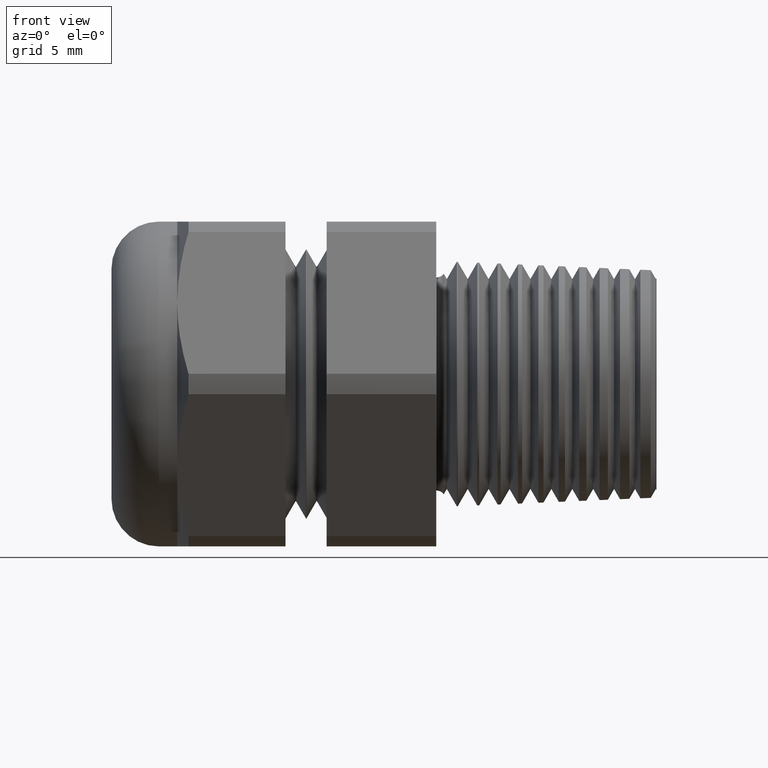
[diagram: clean part render]
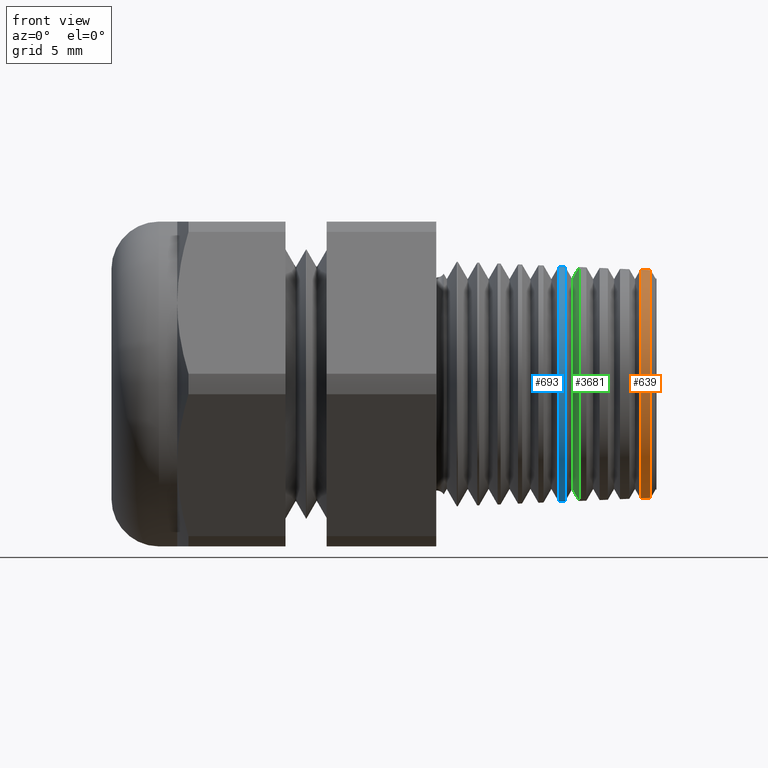
[diagram: same view with three faces highlighted in distinct colors, each labeled with its STEP entity id]
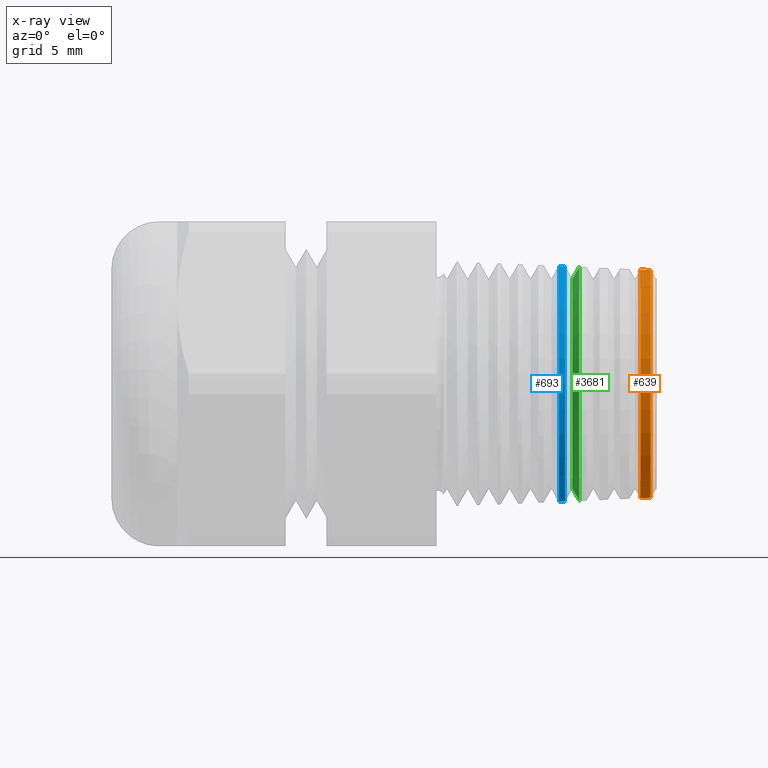
[diagram: x-ray of the same camera — body ghosted, the three highlighted faces saturated]
A machine part, front view with three faces highlighted in distinct colors.
The next image is the same camera in x-ray (body ghosted, the three faces saturated) — at least one of them is partly hidden behind the body in this view.
Their STEP definitions:

[orange] entity #639 — the highlighted conical surface has half-angle 2.5 deg.
#39 = VERTEX_POINT ( 'NONE', #1326 ) ;
#102 = VERTEX_POINT ( 'NONE', #1450 ) ;
#105 = VERTEX_POINT ( 'NONE', #1444 ) ;
#603 = EDGE_CURVE ( 'NONE', #102, #3660, #2236, .T. ) ;
#639 = ADVANCED_FACE ( 'NONE', ( #2288 ), #2349, .T. ) ;
#640 = EDGE_LOOP ( 'NONE', ( #670, #671, #673, #674 ) ) ;
#670 = ORIENTED_EDGE ( 'NONE', *, *, #695, .F. ) ;
#671 = ORIENTED_EDGE ( 'NONE', *, *, #672, .F. ) ;
#672 = EDGE_CURVE ( 'NONE', #102, #105, #2361, .T. ) ;
#673 = ORIENTED_EDGE ( 'NONE', *, *, #603, .T. ) ;
#674 = ORIENTED_EDGE ( 'NONE', *, *, #696, .F. ) ;
#695 = EDGE_CURVE ( 'NONE', #105, #39, #2445, .T. ) ;
#696 = EDGE_CURVE ( 'NONE', #39, #3660, #2441, .T. ) ;
#1326 = CARTESIAN_POINT ( 'NONE',  ( 0.5466950970836145200, 3.749020756565805800E-017, -0.3061307765778688600 ) ) ;
#1444 = CARTESIAN_POINT ( 'NONE',  ( 0.5744813283593623900, 3.741592214058186900E-017, -0.3049176035204956800 ) ) ;
#1450 = CARTESIAN_POINT ( 'NONE',  ( 0.5744813283593623900, 0.0000000000000000000, 0.3049176035204956800 ) ) ;
#2233 = DIRECTION ( 'NONE',  ( -0.9990482215818576900, 0.0000000000000000000, 0.04361938736533608300 ) ) ;
#2234 = VECTOR ( 'NONE', #2233, 39.37007874015748100 ) ;
#2235 = CARTESIAN_POINT ( 'NONE',  ( 0.5899999999999999700, 0.0000000000000000000, 0.3042400436839778900 ) ) ;
#2236 = LINE ( 'NONE', #2235, #2234 ) ;
#2288 = FACE_OUTER_BOUND ( 'NONE', #640, .T. ) ;
#2345 = DIRECTION ( 'NONE',  ( 0.0000000000000000000, 0.0000000000000000000, 1.000000000000000000 ) ) ;
#2346 = DIRECTION ( 'NONE',  ( -1.000000000000000000, 0.0000000000000000000, 0.0000000000000000000 ) ) ;
#2347 = CARTESIAN_POINT ( 'NONE',  ( 0.5899999999999999700, 0.0000000000000000000, 0.0000000000000000000 ) ) ;
#2348 = AXIS2_PLACEMENT_3D ( 'NONE', #2347, #2346, #2345 ) ;
#2349 = CONICAL_SURFACE ( 'NONE', #2348, 0.3042400436839778900, 0.04363323129985832000 ) ;
#2357 = DIRECTION ( 'NONE',  ( 0.0000000000000000000, 0.0000000000000000000, 1.000000000000000000 ) ) ;
#2358 = DIRECTION ( 'NONE',  ( 1.000000000000000000, 0.0000000000000000000, 0.0000000000000000000 ) ) ;
#2359 = CARTESIAN_POINT ( 'NONE',  ( 0.5744813283593623900, 0.0000000000000000000, 0.0000000000000000000 ) ) ;
#2360 = AXIS2_PLACEMENT_3D ( 'NONE', #2359, #2358, #2357 ) ;
#2361 = CIRCLE ( 'NONE', #2360, 0.3049176035204956800 ) ;
#2437 = DIRECTION ( 'NONE',  ( 0.0000000000000000000, 0.0000000000000000000, -1.000000000000000000 ) ) ;
#2438 = DIRECTION ( 'NONE',  ( -1.000000000000000000, 0.0000000000000000000, 0.0000000000000000000 ) ) ;
#2439 = CARTESIAN_POINT ( 'NONE',  ( 0.5466950970836145200, 0.0000000000000000000, 0.0000000000000000000 ) ) ;
#2440 = AXIS2_PLACEMENT_3D ( 'NONE', #2439, #2438, #2437 ) ;
#2441 = CIRCLE ( 'NONE', #2440, 0.3061307765778688600 ) ;
#2442 = DIRECTION ( 'NONE',  ( -0.9990482215818576900, 5.341834311772733300E-018, -0.04361938736533608300 ) ) ;
#2443 = VECTOR ( 'NONE', #2442, 39.37007874015748100 ) ;
#2444 = CARTESIAN_POINT ( 'NONE',  ( 0.5899999999999999700, 3.725865956700344000E-017, -0.3042400436839778900 ) ) ;
#2445 = LINE ( 'NONE', #2444, #2443 ) ;
#3458 = CARTESIAN_POINT ( 'NONE',  ( 0.5466950970836145200, 0.0000000000000000000, 0.3061307765778688600 ) ) ;
#3660 = VERTEX_POINT ( 'NONE', #3458 ) ;

[blue] entity #693 — the highlighted conical surface has half-angle 2.5 deg.
#282 = VERTEX_POINT ( 'NONE', #1667 ) ;
#385 = VERTEX_POINT ( 'NONE', #1850 ) ;
#693 = ADVANCED_FACE ( 'NONE', ( #2387 ), #2386, .T. ) ;
#694 = EDGE_LOOP ( 'NONE', ( #718, #719, #744, #745 ) ) ;
#718 = ORIENTED_EDGE ( 'NONE', *, *, #1083, .F. ) ;
#719 = ORIENTED_EDGE ( 'NONE', *, *, #720, .F. ) ;
#720 = EDGE_CURVE ( 'NONE', #820, #1200, #2454, .T. ) ;
#744 = ORIENTED_EDGE ( 'NONE', *, *, #1086, .T. ) ;
#745 = ORIENTED_EDGE ( 'NONE', *, *, #775, .F. ) ;
#775 = EDGE_CURVE ( 'NONE', #282, #385, #2543, .T. ) ;
#820 = VERTEX_POINT ( 'NONE', #2679 ) ;
#1083 = EDGE_CURVE ( 'NONE', #1200, #282, #3143, .T. ) ;
#1086 = EDGE_CURVE ( 'NONE', #820, #385, #3134, .T. ) ;
#1200 = VERTEX_POINT ( 'NONE', #3361 ) ;
#1667 = CARTESIAN_POINT ( 'NONE',  ( 0.3282027765867085400, 3.865846926642080300E-017, -0.3156703573090325900 ) ) ;
#1850 = CARTESIAN_POINT ( 'NONE',  ( 0.3282027765867085400, 0.0000000000000000000, 0.3156703573090325900 ) ) ;
#2383 = DIRECTION ( 'NONE',  ( -1.000000000000000000, 0.0000000000000000000, 0.0000000000000000000 ) ) ;
#2384 = CARTESIAN_POINT ( 'NONE',  ( 0.5899999999999999700, 0.0000000000000000000, 0.0000000000000000000 ) ) ;
#2385 = AXIS2_PLACEMENT_3D ( 'NONE', #2384, #2383, #2446 ) ;
#2386 = CONICAL_SURFACE ( 'NONE', #2385, 0.3042400436839778900, 0.04363323129985832000 ) ;
#2387 = FACE_OUTER_BOUND ( 'NONE', #694, .T. ) ;
#2446 = DIRECTION ( 'NONE',  ( 0.0000000000000000000, 0.0000000000000000000, 1.000000000000000000 ) ) ;
#2450 = DIRECTION ( 'NONE',  ( 0.0000000000000000000, 0.0000000000000000000, 1.000000000000000000 ) ) ;
#2451 = DIRECTION ( 'NONE',  ( 1.000000000000000000, 0.0000000000000000000, 0.0000000000000000000 ) ) ;
#2452 = CARTESIAN_POINT ( 'NONE',  ( 0.3446887970156173300, 0.0000000000000000000, 0.0000000000000000000 ) ) ;
#2453 = AXIS2_PLACEMENT_3D ( 'NONE', #2452, #2451, #2450 ) ;
#2454 = CIRCLE ( 'NONE', #2453, 0.3149505621122973800 ) ;
#2543 = CIRCLE ( 'NONE', #2602, 0.3156703573090325900 ) ;
#2599 = DIRECTION ( 'NONE',  ( 0.0000000000000000000, 0.0000000000000000000, -1.000000000000000000 ) ) ;
#2600 = DIRECTION ( 'NONE',  ( -1.000000000000000000, 0.0000000000000000000, 0.0000000000000000000 ) ) ;
#2601 = CARTESIAN_POINT ( 'NONE',  ( 0.3282027765867085400, 0.0000000000000000000, 0.0000000000000000000 ) ) ;
#2602 = AXIS2_PLACEMENT_3D ( 'NONE', #2601, #2600, #2599 ) ;
#2679 = CARTESIAN_POINT ( 'NONE',  ( 0.3446887970156173300, 0.0000000000000000000, 0.3149505621122973800 ) ) ;
#3131 = DIRECTION ( 'NONE',  ( -0.9990482215818576900, 0.0000000000000000000, 0.04361938736533608300 ) ) ;
#3132 = VECTOR ( 'NONE', #3131, 39.37007874015748100 ) ;
#3133 = CARTESIAN_POINT ( 'NONE',  ( 0.5899999999999999700, 0.0000000000000000000, 0.3042400436839778900 ) ) ;
#3134 = LINE ( 'NONE', #3133, #3132 ) ;
#3135 = DIRECTION ( 'NONE',  ( -0.9990482215818576900, 5.341834311772733300E-018, -0.04361938736533608300 ) ) ;
#3136 = VECTOR ( 'NONE', #3135, 39.37007874015748100 ) ;
#3137 = CARTESIAN_POINT ( 'NONE',  ( 0.5899999999999999700, 3.725865956700344000E-017, -0.3042400436839778900 ) ) ;
#3143 = LINE ( 'NONE', #3137, #3136 ) ;
#3361 = CARTESIAN_POINT ( 'NONE',  ( 0.3446887970156173300, 3.861439452223463700E-017, -0.3149505621122973800 ) ) ;

[green] entity #3681 — the highlighted conical surface has half-angle 60 deg.
#52 = EDGE_CURVE ( 'NONE', #297, #302, #1360, .T. ) ;
#241 = EDGE_CURVE ( 'NONE', #297, #296, #1594, .T. ) ;
#296 = VERTEX_POINT ( 'NONE', #1699 ) ;
#297 = VERTEX_POINT ( 'NONE', #1698 ) ;
#299 = EDGE_CURVE ( 'NONE', #296, #300, #1697, .T. ) ;
#300 = VERTEX_POINT ( 'NONE', #1693 ) ;
#302 = VERTEX_POINT ( 'NONE', #1692 ) ;
#833 = EDGE_CURVE ( 'NONE', #302, #300, #2713, .T. ) ;
#1357 = DIRECTION ( 'NONE',  ( 0.5000000000000012200, 0.0000000000000000000, -0.8660254037844379300 ) ) ;
#1358 = VECTOR ( 'NONE', #1357, 39.37007874015748100 ) ;
#1359 = CARTESIAN_POINT ( 'NONE',  ( 0.3642379998258641900, 0.0000000000000000000, -0.2810903495974813600 ) ) ;
#1360 = LINE ( 'NONE', #1359, #1358 ) ;
#1591 = DIRECTION ( 'NONE',  ( 0.0000000000000000000, 0.0000000000000000000, 1.000000000000000000 ) ) ;
#1592 = DIRECTION ( 'NONE',  ( -1.000000000000000000, 0.0000000000000000000, 0.0000000000000000000 ) ) ;
#1593 = AXIS2_PLACEMENT_3D ( 'NONE', #1598, #1592, #1591 ) ;
#1594 = CIRCLE ( 'NONE', #1593, 0.2810903495974813600 ) ;
#1598 = CARTESIAN_POINT ( 'NONE',  ( 0.3642379998258641900, 0.0000000000000000000, 0.0000000000000000000 ) ) ;
#1692 = CARTESIAN_POINT ( 'NONE',  ( 0.3828258567109347200, 3.836640384123012000E-017, -0.3132854621262416400 ) ) ;
#1693 = CARTESIAN_POINT ( 'NONE',  ( 0.3828258567109347200, 0.0000000000000000000, 0.3132854621262416400 ) ) ;
#1694 = DIRECTION ( 'NONE',  ( 0.5000000000000012200, 1.060575238724906100E-016, 0.8660254037844379300 ) ) ;
#1695 = VECTOR ( 'NONE', #1694, 39.37007874015748100 ) ;
#1696 = CARTESIAN_POINT ( 'NONE',  ( 0.3642379998258641900, 3.442363969057660500E-017, 0.2810903495974813600 ) ) ;
#1697 = LINE ( 'NONE', #1696, #1695 ) ;
#1698 = CARTESIAN_POINT ( 'NONE',  ( 0.3642379998258641900, 3.649697973431253700E-017, -0.2810903495974813600 ) ) ;
#1699 = CARTESIAN_POINT ( 'NONE',  ( 0.3642379998258641900, 0.0000000000000000000, 0.2810903495974813600 ) ) ;
#2709 = DIRECTION ( 'NONE',  ( 0.0000000000000000000, 0.0000000000000000000, -1.000000000000000000 ) ) ;
#2710 = DIRECTION ( 'NONE',  ( -1.000000000000000000, 0.0000000000000000000, 0.0000000000000000000 ) ) ;
#2711 = CARTESIAN_POINT ( 'NONE',  ( 0.3828258567109347200, 0.0000000000000000000, 0.0000000000000000000 ) ) ;
#2712 = AXIS2_PLACEMENT_3D ( 'NONE', #2711, #2710, #2709 ) ;
#2713 = CIRCLE ( 'NONE', #2712, 0.3132854621262417000 ) ;
#3491 = DIRECTION ( 'NONE',  ( 0.0000000000000000000, 0.0000000000000000000, -1.000000000000000000 ) ) ;
#3492 = DIRECTION ( 'NONE',  ( 1.000000000000000000, 0.0000000000000000000, 0.0000000000000000000 ) ) ;
#3493 = CARTESIAN_POINT ( 'NONE',  ( 0.3642379998258641900, 0.0000000000000000000, 0.0000000000000000000 ) ) ;
#3494 = AXIS2_PLACEMENT_3D ( 'NONE', #3493, #3492, #3491 ) ;
#3496 = CONICAL_SURFACE ( 'NONE', #3494, 0.2810903495974813600, 1.047197551196596300 ) ;
#3500 = FACE_OUTER_BOUND ( 'NONE', #3674, .T. ) ;
#3674 = EDGE_LOOP ( 'NONE', ( #3675, #3676, #3679, #3677 ) ) ;
#3675 = ORIENTED_EDGE ( 'NONE', *, *, #299, .F. ) ;
#3676 = ORIENTED_EDGE ( 'NONE', *, *, #241, .F. ) ;
#3677 = ORIENTED_EDGE ( 'NONE', *, *, #833, .T. ) ;
#3679 = ORIENTED_EDGE ( 'NONE', *, *, #52, .T. ) ;
#3681 = ADVANCED_FACE ( 'NONE', ( #3500 ), #3496, .T. ) ;